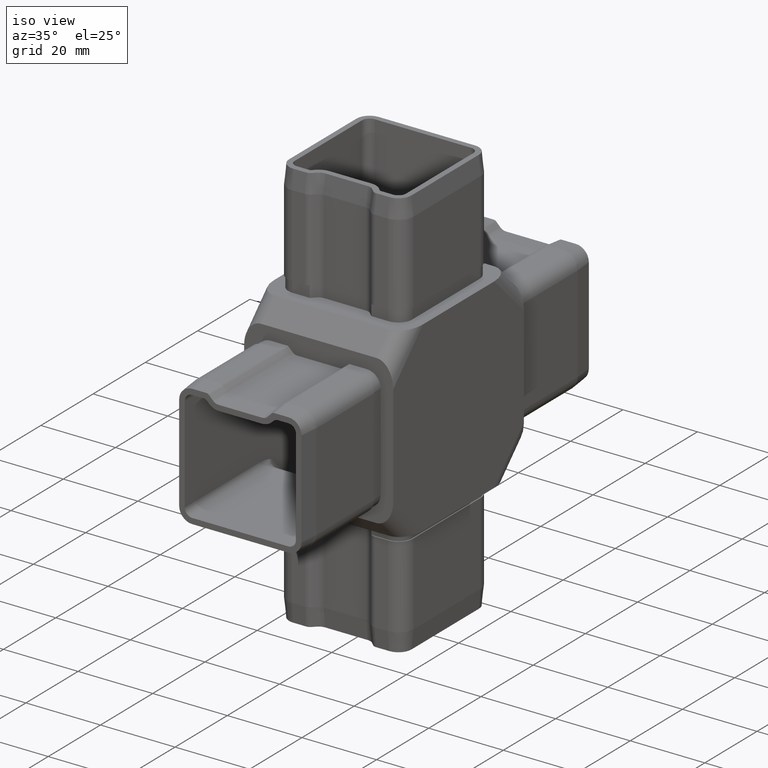
[diagram: clean part render]
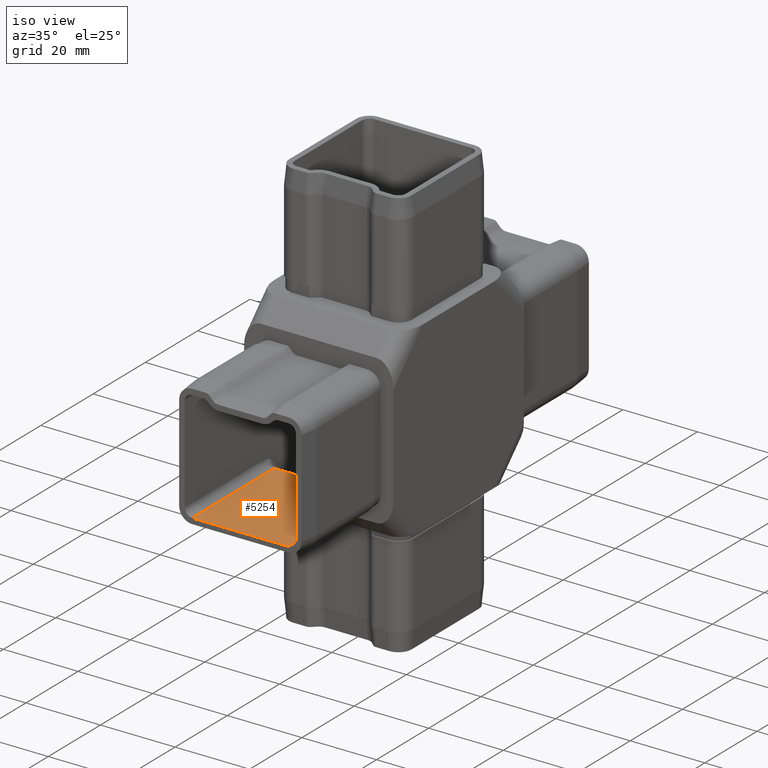
[diagram: same view with one face highlighted and labeled with its STEP entity id]
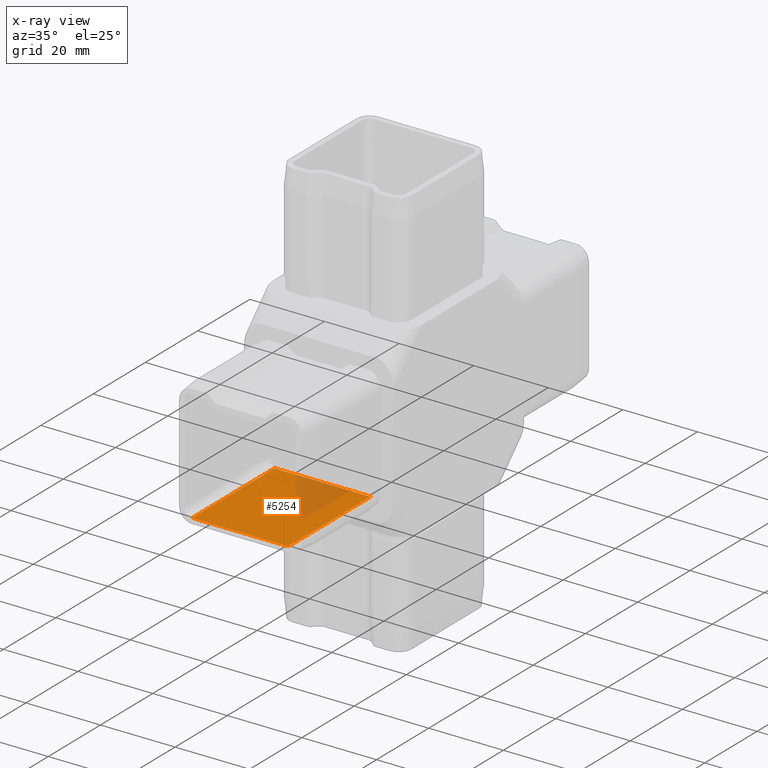
[diagram: x-ray of the same camera — body ghosted, the highlighted face saturated]
A machine part, iso view. The second image highlights one B-rep face of the part: STEP entity #5254.
The next image is the same camera in x-ray: the body ghosted, the highlighted face saturated — about 18% of this face is hidden behind the body in this view.
In plain terms, the highlighted planar face has unit normal (0, 0, -1).
Its self-contained STEP definition (entity closure, byte-faithful):
#334 = VERTEX_POINT ( 'NONE', #16243 ) ;
#2582 = EDGE_CURVE ( 'NONE', #5345, #15918, #6597, .T. ) ;
#2769 = DIRECTION ( 'NONE',  ( -0.0000000000000000000, 1.000000000000000000, -0.0000000000000000000 ) ) ;
#3725 = EDGE_CURVE ( 'NONE', #15228, #5345, #22674, .T. ) ;
#4722 = CARTESIAN_POINT ( 'NONE',  ( 12.89999999999999500, -55.00000000000000000, -14.89999999999997700 ) ) ;
#5254 = ADVANCED_FACE ( 'NONE', ( #29615 ), #14730, .F. ) ;
#5345 = VERTEX_POINT ( 'NONE', #30721 ) ;
#5670 = VECTOR ( 'NONE', #16568, 1000.000000000000000 ) ;
#6597 = LINE ( 'NONE', #11836, #10872 ) ;
#6703 = CARTESIAN_POINT ( 'NONE',  ( -12.90000000000001300, -55.00000000000000000, -14.89999999999997700 ) ) ;
#7368 = ORIENTED_EDGE ( 'NONE', *, *, #17036, .F. ) ;
#7799 = EDGE_CURVE ( 'NONE', #334, #15918, #23723, .T. ) ;
#10526 = CARTESIAN_POINT ( 'NONE',  ( -12.90000000000001300, -55.00000000000000000, -14.89999999999997700 ) ) ;
#10872 = VECTOR ( 'NONE', #22016, 1000.000000000000000 ) ;
#11836 = CARTESIAN_POINT ( 'NONE',  ( -12.90000000000001300, -23.50883117545689400, -14.89999999999997700 ) ) ;
#11934 = VECTOR ( 'NONE', #2769, 1000.000000000000000 ) ;
#12708 = DIRECTION ( 'NONE',  ( -1.000000000000000000, 0.0000000000000000000, -0.0000000000000000000 ) ) ;
#12996 = VECTOR ( 'NONE', #27741, 1000.000000000000000 ) ;
#14730 = PLANE ( 'NONE',  #27529 ) ;
#15225 = ORIENTED_EDGE ( 'NONE', *, *, #7799, .F. ) ;
#15228 = VERTEX_POINT ( 'NONE', #15678 ) ;
#15678 = CARTESIAN_POINT ( 'NONE',  ( 12.89999999999999500, -55.00000000000000000, -14.89999999999997700 ) ) ;
#15918 = VERTEX_POINT ( 'NONE', #23098 ) ;
#16243 = CARTESIAN_POINT ( 'NONE',  ( -12.90000000000001300, -55.00000000000000000, -14.89999999999997700 ) ) ;
#16568 = DIRECTION ( 'NONE',  ( -1.000000000000000000, 0.0000000000000000000, -0.0000000000000000000 ) ) ;
#17036 = EDGE_CURVE ( 'NONE', #15228, #334, #18049, .T. ) ;
#18049 = LINE ( 'NONE', #6703, #5670 ) ;
#21166 = ORIENTED_EDGE ( 'NONE', *, *, #2582, .T. ) ;
#22016 = DIRECTION ( 'NONE',  ( -1.000000000000000000, 0.0000000000000000000, 0.0000000000000000000 ) ) ;
#22344 = CARTESIAN_POINT ( 'NONE',  ( -12.90000000000001300, -55.00000000000000000, -14.89999999999997700 ) ) ;
#22674 = LINE ( 'NONE', #4722, #11934 ) ;
#23030 = EDGE_LOOP ( 'NONE', ( #23891, #21166, #15225, #7368 ) ) ;
#23098 = CARTESIAN_POINT ( 'NONE',  ( -12.90000000000001300, -23.50883117545689400, -14.89999999999997700 ) ) ;
#23723 = LINE ( 'NONE', #10526, #12996 ) ;
#23891 = ORIENTED_EDGE ( 'NONE', *, *, #3725, .T. ) ;
#27418 = DIRECTION ( 'NONE',  ( 0.0000000000000000000, 0.0000000000000000000, -1.000000000000000000 ) ) ;
#27529 = AXIS2_PLACEMENT_3D ( 'NONE', #22344, #27418, #12708 ) ;
#27741 = DIRECTION ( 'NONE',  ( -0.0000000000000000000, 1.000000000000000000, -0.0000000000000000000 ) ) ;
#29615 = FACE_OUTER_BOUND ( 'NONE', #23030, .T. ) ;
#30721 = CARTESIAN_POINT ( 'NONE',  ( 12.89999999999999500, -23.50883117545689400, -14.89999999999997700 ) ) ;